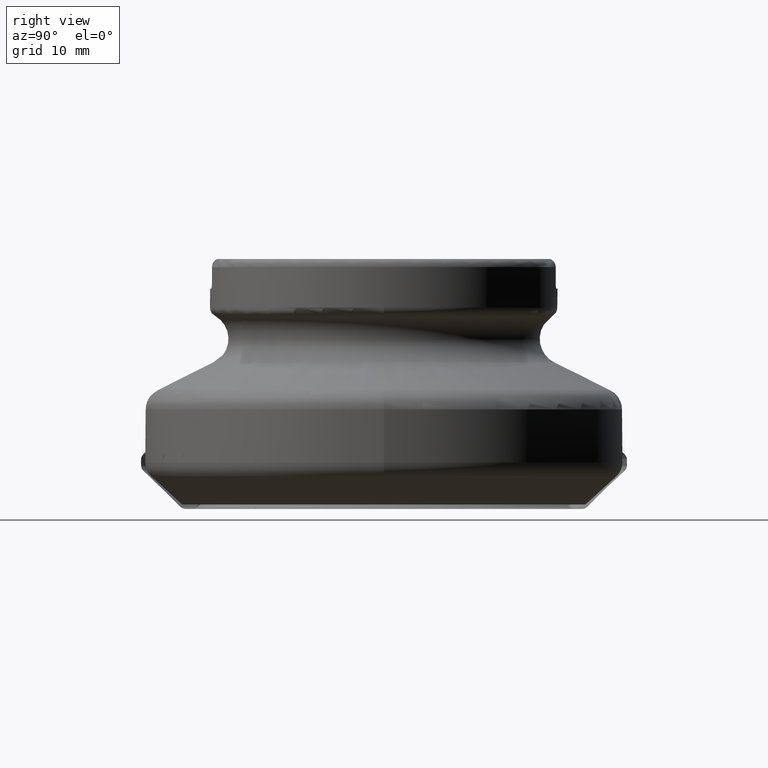
[diagram: clean part render]
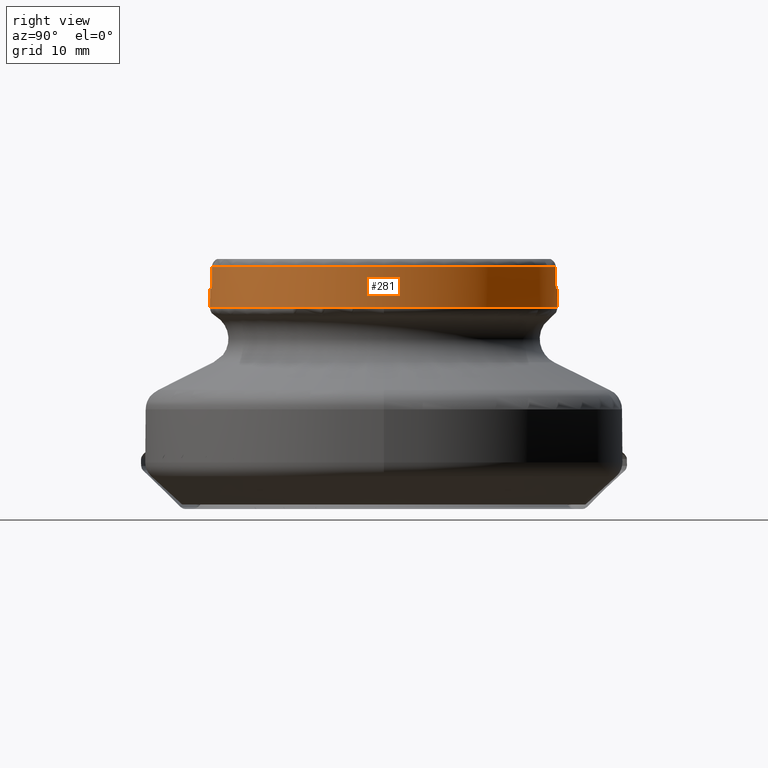
[diagram: same view with one face highlighted and labeled with its STEP entity id]
A machine part, right view. The second image highlights one B-rep face of the part: STEP entity #281.
In plain terms, the highlighted cylindrical surface (bore or boss wall) has radius 27.813 mm, axis along (-0, 0, -1).
Its self-contained STEP definition (entity closure, byte-faithful):
#199=CYLINDRICAL_SURFACE('',#1078,27.813);
#208=LINE('',#1643,#244);
#209=LINE('',#1681,#245);
#210=LINE('',#1685,#246);
#211=LINE('',#1723,#247);
#244=VECTOR('',#1187,1.);
#245=VECTOR('',#1190,1.);
#246=VECTOR('',#1193,1.);
#247=VECTOR('',#1196,1.);
#281=ADVANCED_FACE('',(#361,#362),#199,.T.);
#361=FACE_BOUND('',#453,.T.);
#362=FACE_BOUND('',#454,.T.);
#453=EDGE_LOOP('',(#565));
#454=EDGE_LOOP('',(#566,#567,#568,#569,#570,#571,#572,#573,#574,#575,#576,
#577));
#565=ORIENTED_EDGE('',*,*,#860,.T.);
#566=ORIENTED_EDGE('',*,*,#861,.T.);
#567=ORIENTED_EDGE('',*,*,#862,.T.);
#568=ORIENTED_EDGE('',*,*,#863,.T.);
#569=ORIENTED_EDGE('',*,*,#864,.T.);
#570=ORIENTED_EDGE('',*,*,#865,.T.);
#571=ORIENTED_EDGE('',*,*,#866,.T.);
#572=ORIENTED_EDGE('',*,*,#867,.T.);
#573=ORIENTED_EDGE('',*,*,#868,.T.);
#574=ORIENTED_EDGE('',*,*,#869,.T.);
#575=ORIENTED_EDGE('',*,*,#870,.T.);
#576=ORIENTED_EDGE('',*,*,#871,.T.);
#577=ORIENTED_EDGE('',*,*,#872,.T.);
#775=VERTEX_POINT('',#1639);
#776=VERTEX_POINT('',#1641);
#777=VERTEX_POINT('',#1642);
#778=VERTEX_POINT('',#1644);
#779=VERTEX_POINT('',#1661);
#780=VERTEX_POINT('',#1663);
#781=VERTEX_POINT('',#1680);
#782=VERTEX_POINT('',#1682);
#783=VERTEX_POINT('',#1684);
#784=VERTEX_POINT('',#1686);
#785=VERTEX_POINT('',#1703);
#786=VERTEX_POINT('',#1705);
#787=VERTEX_POINT('',#1722);
#860=EDGE_CURVE('',#775,#775,#965,.T.);
#861=EDGE_CURVE('',#776,#777,#966,.T.);
#862=EDGE_CURVE('',#777,#778,#208,.T.);
#863=EDGE_CURVE('',#778,#779,#1040,.T.);
#864=EDGE_CURVE('',#779,#780,#967,.T.);
#865=EDGE_CURVE('',#780,#781,#1041,.T.);
#866=EDGE_CURVE('',#781,#782,#209,.T.);
#867=EDGE_CURVE('',#782,#783,#968,.T.);
#868=EDGE_CURVE('',#783,#784,#210,.T.);
#869=EDGE_CURVE('',#784,#785,#1042,.T.);
#870=EDGE_CURVE('',#785,#786,#969,.T.);
#871=EDGE_CURVE('',#786,#787,#1043,.T.);
#872=EDGE_CURVE('',#787,#776,#211,.T.);
#965=CIRCLE('',#1073,27.813);
#966=CIRCLE('',#1074,27.813);
#967=CIRCLE('',#1075,27.813);
#968=CIRCLE('',#1076,27.813);
#969=CIRCLE('',#1077,27.813);
#1040=B_SPLINE_CURVE_WITH_KNOTS('',3,(#1645,#1646,#1647,#1648,#1649,#1650,
#1651,#1652,#1653,#1654,#1655,#1656,#1657,#1658,#1659,#1660),
 .UNSPECIFIED.,.F.,.F.,(4,3,3,3,3,4),(0.,0.212262429365807,0.424449410295867,
0.637819774411758,0.853410922731154,1.),.UNSPECIFIED.);
#1041=B_SPLINE_CURVE_WITH_KNOTS('',3,(#1664,#1665,#1666,#1667,#1668,#1669,
#1670,#1671,#1672,#1673,#1674,#1675,#1676,#1677,#1678,#1679),
 .UNSPECIFIED.,.F.,.F.,(4,3,3,3,3,4),(0.,0.217198799106012,0.434416656394046,
0.651247333871564,0.866265248209738,1.),.UNSPECIFIED.);
#1042=B_SPLINE_CURVE_WITH_KNOTS('',3,(#1687,#1688,#1689,#1690,#1691,#1692,
#1693,#1694,#1695,#1696,#1697,#1698,#1699,#1700,#1701,#1702),
 .UNSPECIFIED.,.F.,.F.,(4,3,3,3,3,4),(0.,0.212262429365807,0.424449410295867,
0.637819774411758,0.853410922731154,1.),.UNSPECIFIED.);
#1043=B_SPLINE_CURVE_WITH_KNOTS('',3,(#1706,#1707,#1708,#1709,#1710,#1711,
#1712,#1713,#1714,#1715,#1716,#1717,#1718,#1719,#1720,#1721),
 .UNSPECIFIED.,.F.,.F.,(4,3,3,3,3,4),(0.,0.217198799106013,0.434416656394046,
0.651247333871564,0.866265248209738,1.),.UNSPECIFIED.);
#1073=AXIS2_PLACEMENT_3D('',#1638,#1183,#1184);
#1074=AXIS2_PLACEMENT_3D('',#1640,#1185,#1186);
#1075=AXIS2_PLACEMENT_3D('',#1662,#1188,#1189);
#1076=AXIS2_PLACEMENT_3D('',#1683,#1191,#1192);
#1077=AXIS2_PLACEMENT_3D('',#1704,#1194,#1195);
#1078=AXIS2_PLACEMENT_3D('',#1724,#1197,#1198);
#1183=DIRECTION('',(1.17145536458252E-15,0.,1.));
#1184=DIRECTION('',(1.,0.,-1.24741917518916E-15));
#1185=DIRECTION('',(-1.17145536458252E-15,0.,-1.));
#1186=DIRECTION('',(1.,0.,-1.24741917518916E-15));
#1187=DIRECTION('',(-1.17145536458252E-15,0.,-1.));
#1188=DIRECTION('',(-1.17145536458252E-15,0.,-1.));
#1189=DIRECTION('',(1.,0.,-1.24741917518916E-15));
#1190=DIRECTION('',(1.17145536458252E-15,0.,1.));
#1191=DIRECTION('',(-1.17145536458252E-15,0.,-1.));
#1192=DIRECTION('',(1.,0.,-1.24741917518916E-15));
#1193=DIRECTION('',(-1.17145536458252E-15,0.,-1.));
#1194=DIRECTION('',(-1.17145536458252E-15,0.,-1.));
#1195=DIRECTION('',(1.,0.,-1.24741917518916E-15));
#1196=DIRECTION('',(1.17145536458252E-15,0.,1.));
#1197=DIRECTION('',(-1.17145536458252E-15,0.,-1.));
#1198=DIRECTION('',(-1.,0.,1.17145536458252E-15));
#1638=CARTESIAN_POINT('',(3.77483289779687E-14,0.,32.2234462526203));
#1639=CARTESIAN_POINT('',(27.813,0.,32.2234462526203));
#1640=CARTESIAN_POINT('',(4.53353226093437E-14,0.,38.7));
#1641=CARTESIAN_POINT('',(-4.17499999999995,-27.4978607167943,38.6999999999996));
#1642=CARTESIAN_POINT('',(-4.17499999999995,27.4978607167905,38.7));
#1643=CARTESIAN_POINT('',(-4.175,27.4978607167903,4.43817174011934E-15));
#1644=CARTESIAN_POINT('',(-4.17499999999995,27.4978607167903,36.05));
#1645=CARTESIAN_POINT('',(-4.17499999999995,27.4978607167903,36.05));
#1646=CARTESIAN_POINT('',(-4.17499999999995,27.4978607167903,35.9611754684468));
#1647=CARTESIAN_POINT('',(-4.15977710149021,27.5001834741574,35.8711269697269));
#1648=CARTESIAN_POINT('',(-4.1306479240006,27.5045581082109,35.7873286940804));
#1649=CARTESIAN_POINT('',(-4.1015245386413,27.5089318723994,35.7035470811266));
#1650=CARTESIAN_POINT('',(-4.05771689304238,27.5154678287708,35.6237128071944));
#1651=CARTESIAN_POINT('',(-4.00291099062323,27.523438604236,35.5542906215791));
#1652=CARTESIAN_POINT('',(-3.94779736650786,27.5314541336499,35.4844786474232));
#1653=CARTESIAN_POINT('',(-3.88007140921619,27.5411276808003,35.4232850221725));
#1654=CARTESIAN_POINT('',(-3.80528912125871,27.5514562900699,35.3755733752836));
#1655=CARTESIAN_POINT('',(-3.72974074604638,27.5618907080294,35.3273729591208));
#1656=CARTESIAN_POINT('',(-3.644926099166,27.57326974006,35.2916113991731));
#1657=CARTESIAN_POINT('',(-3.5577763362679,27.5845100833981,35.2711593160983));
#1658=CARTESIAN_POINT('',(-3.49807197543855,27.5922105921796,35.2571480496646));
#1659=CARTESIAN_POINT('',(-3.43635121651154,27.5999688322452,35.25));
#1660=CARTESIAN_POINT('',(-3.37499999999996,27.6074689893876,35.25));
#1661=CARTESIAN_POINT('',(-3.37499999999996,27.6074689893876,35.25));
#1662=CARTESIAN_POINT('',(4.1293801601534E-14,0.,35.25));
#1663=CARTESIAN_POINT('',(3.37500000000004,27.6074689893876,35.25));
#1664=CARTESIAN_POINT('',(3.37500000000004,27.6074689893876,35.25));
#1665=CARTESIAN_POINT('',(3.46521883679624,27.5964397793465,35.25));
#1666=CARTESIAN_POINT('',(3.55662286757771,27.5847921875284,35.2656862324638));
#1667=CARTESIAN_POINT('',(3.64165886755229,27.5735614256189,35.2957500093764));
#1668=CARTESIAN_POINT('',(3.72669824523918,27.5623302176126,35.3258149804513));
#1669=CARTESIAN_POINT('',(3.80772652041613,27.5512109035229,35.371095278172));
#1670=CARTESIAN_POINT('',(3.877987670394,27.5413176995632,35.4279040239387));
#1671=CARTESIAN_POINT('',(3.94811567213659,27.5314432436975,35.4846051144187));
#1672=CARTESIAN_POINT('',(4.00946695840762,27.5225258960149,35.5543857780615));
#1673=CARTESIAN_POINT('',(4.05678831197166,27.5155490149088,35.6314731816731));
#1674=CARTESIAN_POINT('',(4.10371601653434,27.5086301719203,35.7079193234194));
#1675=CARTESIAN_POINT('',(4.13814765114824,27.5034374120495,35.7936963357839));
#1676=CARTESIAN_POINT('',(4.1570757926113,27.5005761731365,35.8816032820644));
#1677=CARTESIAN_POINT('',(4.16895365896499,27.4987806765485,35.9367670159957));
#1678=CARTESIAN_POINT('',(4.17500000000005,27.4978607167903,35.9935434232498));
#1679=CARTESIAN_POINT('',(4.17500000000005,27.4978607167903,36.05));
#1680=CARTESIAN_POINT('',(4.17500000000005,27.4978607167903,36.05));
#1681=CARTESIAN_POINT('',(4.17500000000001,27.4978607167903,-3.98551733310665E-15));
#1682=CARTESIAN_POINT('',(4.17500000000004,27.4978607167904,38.7));
#1683=CARTESIAN_POINT('',(4.53353226093437E-14,0.,38.7));
#1684=CARTESIAN_POINT('',(4.17500000000004,-27.4978607167903,38.7));
#1685=CARTESIAN_POINT('',(4.17500000000001,-27.4978607167903,-3.98551733310665E-15));
#1686=CARTESIAN_POINT('',(4.17500000000005,-27.4978607167903,36.05));
#1687=CARTESIAN_POINT('',(4.17500000000005,-27.4978607167903,36.05));
#1688=CARTESIAN_POINT('',(4.17500000000005,-27.4978607167903,35.9611754684468));
#1689=CARTESIAN_POINT('',(4.1597771014903,-27.5001834741574,35.8711269697269));
#1690=CARTESIAN_POINT('',(4.13064792400069,-27.5045581082109,35.7873286940804));
#1691=CARTESIAN_POINT('',(4.10152453864138,-27.5089318723994,35.7035470811266));
#1692=CARTESIAN_POINT('',(4.05771689304246,-27.5154678287708,35.6237128071944));
#1693=CARTESIAN_POINT('',(4.00291099062331,-27.523438604236,35.5542906215791));
#1694=CARTESIAN_POINT('',(3.94779736650794,-27.5314541336499,35.4844786474232));
#1695=CARTESIAN_POINT('',(3.88007140921627,-27.5411276808003,35.4232850221725));
#1696=CARTESIAN_POINT('',(3.80528912125879,-27.5514562900699,35.3755733752836));
#1697=CARTESIAN_POINT('',(3.72974074604646,-27.5618907080294,35.3273729591208));
#1698=CARTESIAN_POINT('',(3.64492609916609,-27.57326974006,35.291611399173));
#1699=CARTESIAN_POINT('',(3.55777633626798,-27.5845100833981,35.2711593160983));
#1700=CARTESIAN_POINT('',(3.49807197543864,-27.5922105921796,35.2571480496645));
#1701=CARTESIAN_POINT('',(3.43635121651162,-27.5999688322452,35.25));
#1702=CARTESIAN_POINT('',(3.37500000000004,-27.6074689893876,35.25));
#1703=CARTESIAN_POINT('',(3.37500000000004,-27.6074689893876,35.25));
#1704=CARTESIAN_POINT('',(4.1293801601534E-14,0.,35.25));
#1705=CARTESIAN_POINT('',(-3.37499999999996,-27.6074689893876,35.25));
#1706=CARTESIAN_POINT('',(-3.37499999999996,-27.6074689893876,35.25));
#1707=CARTESIAN_POINT('',(-3.46521883679616,-27.5964397793465,35.25));
#1708=CARTESIAN_POINT('',(-3.55662286757763,-27.5847921875284,35.2656862324639));
#1709=CARTESIAN_POINT('',(-3.64165886755221,-27.5735614256189,35.2957500093764));
#1710=CARTESIAN_POINT('',(-3.7266982452391,-27.5623302176126,35.3258149804513));
#1711=CARTESIAN_POINT('',(-3.80772652041605,-27.5512109035229,35.371095278172));
#1712=CARTESIAN_POINT('',(-3.87798767039391,-27.5413176995632,35.4279040239387));
#1713=CARTESIAN_POINT('',(-3.94811567213651,-27.5314432436975,35.4846051144187));
#1714=CARTESIAN_POINT('',(-4.00946695840754,-27.5225258960149,35.5543857780615));
#1715=CARTESIAN_POINT('',(-4.05678831197158,-27.5155490149088,35.6314731816731));
#1716=CARTESIAN_POINT('',(-4.10371601653426,-27.5086301719203,35.7079193234195));
#1717=CARTESIAN_POINT('',(-4.13814765114816,-27.5034374120495,35.7936963357839));
#1718=CARTESIAN_POINT('',(-4.15707579261122,-27.5005761731365,35.8816032820645));
#1719=CARTESIAN_POINT('',(-4.16895365896491,-27.4987806765485,35.9367670159957));
#1720=CARTESIAN_POINT('',(-4.17499999999995,-27.4978607167903,35.9935434232498));
#1721=CARTESIAN_POINT('',(-4.17499999999995,-27.4978607167903,36.05));
#1722=CARTESIAN_POINT('',(-4.17499999999995,-27.4978607167903,36.05));
#1723=CARTESIAN_POINT('',(-4.175,-27.4978607167903,4.43817174011934E-15));
#1724=CARTESIAN_POINT('',(0.,0.,0.));